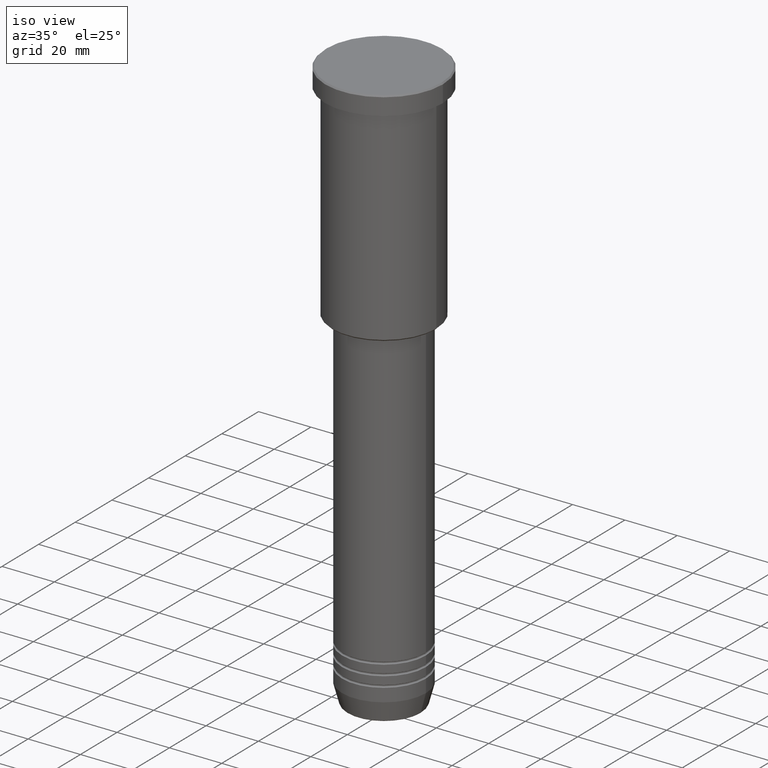
[diagram: clean part render]
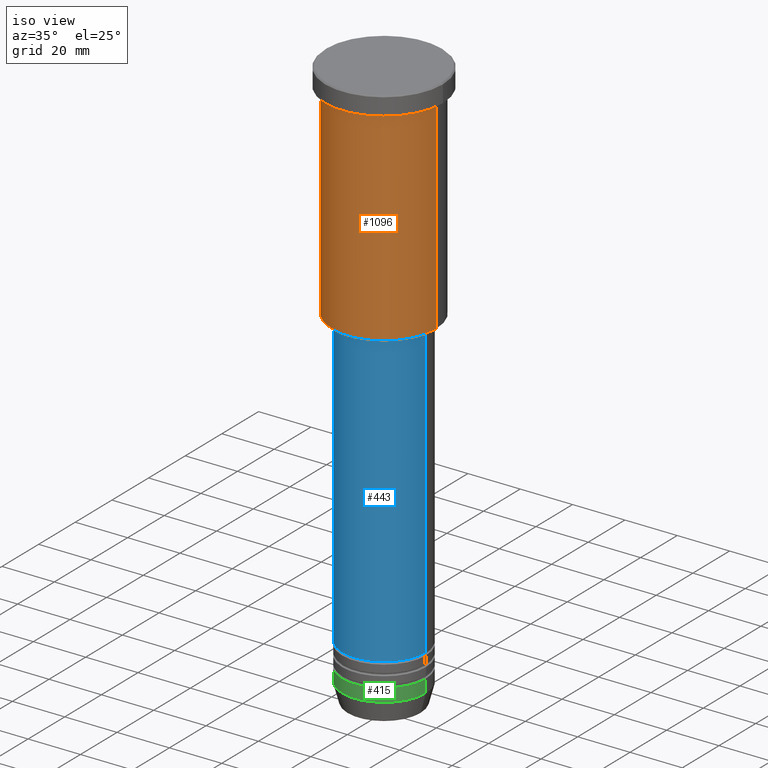
[diagram: same view with three faces highlighted in distinct colors, each labeled with its STEP entity id]
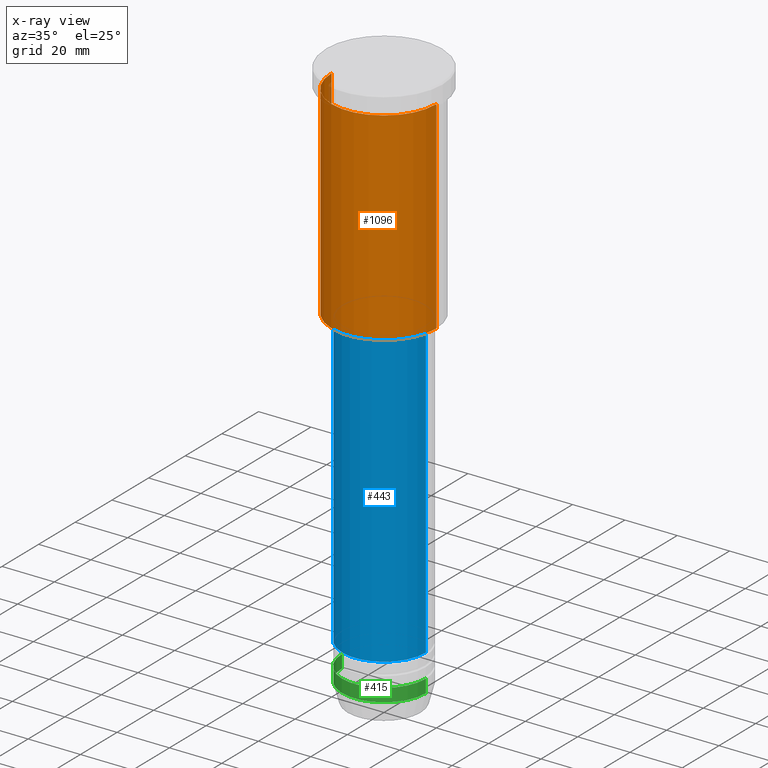
[diagram: x-ray of the same camera — body ghosted, the three highlighted faces saturated]
A machine part, iso view with three faces highlighted in distinct colors.
The next image is the same camera in x-ray (body ghosted, the three faces saturated) — at least one of them is partly hidden behind the body in this view.
Their STEP definitions:

[orange] entity #1096 — the highlighted cylindrical surface (partial cylindrical patch) has radius 20 mm, axis along (-0, -0, 1).
#25 = FACE_OUTER_BOUND ( 'NONE', #136, .T. ) ;
#26 = CARTESIAN_POINT ( 'NONE',  ( 20.00000000000000000, 0.000000000000000000, -7.999999999999994671 ) ) ;
#35 = DIRECTION ( 'NONE',  ( -0.000000000000000000, -0.000000000000000000, 1.000000000000000000 ) ) ;
#95 = CARTESIAN_POINT ( 'NONE',  ( -20.00000000000000000, 2.449293598294706513E-15, -7.999999999999994671 ) ) ;
#136 = EDGE_LOOP ( 'NONE', ( #387, #240, #1048, #1097 ) ) ;
#187 = VECTOR ( 'NONE', #393, 1000.000000000000000 ) ;
#225 = CIRCLE ( 'NONE', #726, 20.00000000000000000 ) ;
#228 = CYLINDRICAL_SURFACE ( 'NONE', #856, 20.00000000000000355 ) ;
#240 = ORIENTED_EDGE ( 'NONE', *, *, #769, .T. ) ;
#278 = DIRECTION ( 'NONE',  ( -0.000000000000000000, -0.000000000000000000, 1.000000000000000000 ) ) ;
#280 = VECTOR ( 'NONE', #278, 1000.000000000000000 ) ;
#309 = DIRECTION ( 'NONE',  ( 1.000000000000000000, 0.000000000000000000, 0.000000000000000000 ) ) ;
#321 = DIRECTION ( 'NONE',  ( -0.000000000000000000, -0.000000000000000000, 1.000000000000000000 ) ) ;
#387 = ORIENTED_EDGE ( 'NONE', *, *, #1128, .F. ) ;
#393 = DIRECTION ( 'NONE',  ( -0.000000000000000000, -0.000000000000000000, 1.000000000000000000 ) ) ;
#402 = DIRECTION ( 'NONE',  ( -1.000000000000000000, 0.000000000000000000, 0.000000000000000000 ) ) ;
#452 = CARTESIAN_POINT ( 'NONE',  ( 20.00000000000000355, 0.000000000000000000, 0.000000000000000000 ) ) ;
#478 = EDGE_CURVE ( 'NONE', #498, #624, #1088, .T. ) ;
#491 = DIRECTION ( 'NONE',  ( -0.000000000000000000, -0.000000000000000000, 1.000000000000000000 ) ) ;
#498 = VERTEX_POINT ( 'NONE', #920 ) ;
#504 = CIRCLE ( 'NONE', #838, 20.00000000000000355 ) ;
#572 = CARTESIAN_POINT ( 'NONE',  ( -20.00000000000000355, 2.449293598294706907E-15, -85.49999999999998579 ) ) ;
#576 = CARTESIAN_POINT ( 'NONE',  ( 0.000000000000000000, 0.000000000000000000, 0.000000000000000000 ) ) ;
#624 = VERTEX_POINT ( 'NONE', #26 ) ;
#659 = DIRECTION ( 'NONE',  ( 1.000000000000000000, 0.000000000000000000, 0.000000000000000000 ) ) ;
#666 = LINE ( 'NONE', #1108, #187 ) ;
#726 = AXIS2_PLACEMENT_3D ( 'NONE', #759, #321, #659 ) ;
#748 = EDGE_CURVE ( 'NONE', #929, #624, #225, .T. ) ;
#759 = CARTESIAN_POINT ( 'NONE',  ( 0.000000000000000000, 0.000000000000000000, -7.999999999999994671 ) ) ;
#765 = VERTEX_POINT ( 'NONE', #572 ) ;
#769 = EDGE_CURVE ( 'NONE', #765, #498, #504, .T. ) ;
#838 = AXIS2_PLACEMENT_3D ( 'NONE', #937, #35, #402 ) ;
#856 = AXIS2_PLACEMENT_3D ( 'NONE', #576, #491, #309 ) ;
#920 = CARTESIAN_POINT ( 'NONE',  ( 20.00000000000000355, 0.000000000000000000, -85.49999999999998579 ) ) ;
#929 = VERTEX_POINT ( 'NONE', #95 ) ;
#937 = CARTESIAN_POINT ( 'NONE',  ( 0.000000000000000000, 0.000000000000000000, -85.49999999999998579 ) ) ;
#1048 = ORIENTED_EDGE ( 'NONE', *, *, #478, .T. ) ;
#1088 = LINE ( 'NONE', #452, #280 ) ;
#1096 = ADVANCED_FACE ( 'NONE', ( #25 ), #228, .T. ) ;
#1097 = ORIENTED_EDGE ( 'NONE', *, *, #748, .F. ) ;
#1108 = CARTESIAN_POINT ( 'NONE',  ( -20.00000000000000355, 2.449293598294706907E-15, 0.000000000000000000 ) ) ;
#1128 = EDGE_CURVE ( 'NONE', #765, #929, #666, .T. ) ;

[blue] entity #443 — the highlighted cylindrical surface (partial cylindrical patch) has radius 16 mm, axis along (-0, -0, 1).
#1 = CARTESIAN_POINT ( 'NONE',  ( 16.00000000000000000, 0.000000000000000000, 0.000000000000000000 ) ) ;
#58 = EDGE_CURVE ( 'NONE', #1114, #335, #188, .T. ) ;
#79 = FACE_OUTER_BOUND ( 'NONE', #618, .T. ) ;
#128 = CIRCLE ( 'NONE', #606, 16.00000000000000000 ) ;
#188 = LINE ( 'NONE', #1, #1052 ) ;
#242 = VECTOR ( 'NONE', #1151, 1000.000000000000000 ) ;
#291 = CARTESIAN_POINT ( 'NONE',  ( -16.00000000000000000, 1.959434878635765131E-15, -198.4999999999999716 ) ) ;
#335 = VERTEX_POINT ( 'NONE', #922 ) ;
#427 = VERTEX_POINT ( 'NONE', #902 ) ;
#441 = CYLINDRICAL_SURFACE ( 'NONE', #679, 16.00000000000000000 ) ;
#443 = ADVANCED_FACE ( 'NONE', ( #79 ), #441, .T. ) ;
#445 = DIRECTION ( 'NONE',  ( -0.000000000000000000, -0.000000000000000000, 1.000000000000000000 ) ) ;
#453 = AXIS2_PLACEMENT_3D ( 'NONE', #641, #913, #1171 ) ;
#490 = ORIENTED_EDGE ( 'NONE', *, *, #995, .F. ) ;
#522 = LINE ( 'NONE', #706, #242 ) ;
#537 = DIRECTION ( 'NONE',  ( 1.000000000000000000, 0.000000000000000000, 0.000000000000000000 ) ) ;
#606 = AXIS2_PLACEMENT_3D ( 'NONE', #993, #445, #812 ) ;
#618 = EDGE_LOOP ( 'NONE', ( #811, #1090, #1180, #490 ) ) ;
#641 = CARTESIAN_POINT ( 'NONE',  ( 0.000000000000000000, 0.000000000000000000, -198.4999999999999716 ) ) ;
#679 = AXIS2_PLACEMENT_3D ( 'NONE', #878, #727, #537 ) ;
#706 = CARTESIAN_POINT ( 'NONE',  ( -16.00000000000000000, 1.959434878635765131E-15, 0.000000000000000000 ) ) ;
#727 = DIRECTION ( 'NONE',  ( -0.000000000000000000, -0.000000000000000000, 1.000000000000000000 ) ) ;
#796 = EDGE_CURVE ( 'NONE', #951, #427, #522, .T. ) ;
#800 = CIRCLE ( 'NONE', #453, 16.00000000000000000 ) ;
#811 = ORIENTED_EDGE ( 'NONE', *, *, #796, .F. ) ;
#812 = DIRECTION ( 'NONE',  ( 1.000000000000000000, 0.000000000000000000, 0.000000000000000000 ) ) ;
#815 = DIRECTION ( 'NONE',  ( -0.000000000000000000, -0.000000000000000000, 1.000000000000000000 ) ) ;
#878 = CARTESIAN_POINT ( 'NONE',  ( 0.000000000000000000, 0.000000000000000000, 0.000000000000000000 ) ) ;
#902 = CARTESIAN_POINT ( 'NONE',  ( -16.00000000000000000, 1.959434878635765131E-15, -87.00000000000002842 ) ) ;
#913 = DIRECTION ( 'NONE',  ( -0.000000000000000000, -0.000000000000000000, 1.000000000000000000 ) ) ;
#922 = CARTESIAN_POINT ( 'NONE',  ( 16.00000000000000000, 0.000000000000000000, -87.00000000000002842 ) ) ;
#941 = EDGE_CURVE ( 'NONE', #951, #1114, #800, .T. ) ;
#951 = VERTEX_POINT ( 'NONE', #291 ) ;
#993 = CARTESIAN_POINT ( 'NONE',  ( 0.000000000000000000, 0.000000000000000000, -87.00000000000002842 ) ) ;
#995 = EDGE_CURVE ( 'NONE', #427, #335, #128, .T. ) ;
#1052 = VECTOR ( 'NONE', #815, 1000.000000000000000 ) ;
#1090 = ORIENTED_EDGE ( 'NONE', *, *, #941, .T. ) ;
#1114 = VERTEX_POINT ( 'NONE', #1131 ) ;
#1131 = CARTESIAN_POINT ( 'NONE',  ( 16.00000000000000000, 0.000000000000000000, -198.4999999999999716 ) ) ;
#1151 = DIRECTION ( 'NONE',  ( -0.000000000000000000, -0.000000000000000000, 1.000000000000000000 ) ) ;
#1171 = DIRECTION ( 'NONE',  ( 1.000000000000000000, 0.000000000000000000, 0.000000000000000000 ) ) ;
#1180 = ORIENTED_EDGE ( 'NONE', *, *, #58, .T. ) ;

[green] entity #415 — the highlighted cylindrical surface (partial cylindrical patch) has radius 16 mm, axis along (-0, -0, 1).
#51 = CIRCLE ( 'NONE', #141, 16.00000000000000000 ) ;
#70 = CYLINDRICAL_SURFACE ( 'NONE', #601, 16.00000000000000000 ) ;
#102 = VERTEX_POINT ( 'NONE', #728 ) ;
#129 = DIRECTION ( 'NONE',  ( -0.000000000000000000, -0.000000000000000000, 1.000000000000000000 ) ) ;
#141 = AXIS2_PLACEMENT_3D ( 'NONE', #809, #1169, #354 ) ;
#173 = FACE_OUTER_BOUND ( 'NONE', #830, .T. ) ;
#250 = CARTESIAN_POINT ( 'NONE',  ( -16.00000000000000000, 1.959434878635765131E-15, -207.5000000000000000 ) ) ;
#322 = EDGE_CURVE ( 'NONE', #935, #357, #857, .T. ) ;
#354 = DIRECTION ( 'NONE',  ( 1.000000000000000000, 0.000000000000000000, 0.000000000000000000 ) ) ;
#357 = VERTEX_POINT ( 'NONE', #250 ) ;
#364 = VECTOR ( 'NONE', #877, 1000.000000000000000 ) ;
#375 = EDGE_CURVE ( 'NONE', #357, #603, #51, .T. ) ;
#381 = AXIS2_PLACEMENT_3D ( 'NONE', #677, #129, #1033 ) ;
#391 = CARTESIAN_POINT ( 'NONE',  ( -16.00000000000000000, 1.959434878635765131E-15, 0.000000000000000000 ) ) ;
#415 = ADVANCED_FACE ( 'NONE', ( #173 ), #70, .T. ) ;
#457 = CARTESIAN_POINT ( 'NONE',  ( -16.00000000000000000, 1.959434878635765131E-15, -212.5000000000000000 ) ) ;
#597 = ORIENTED_EDGE ( 'NONE', *, *, #322, .F. ) ;
#601 = AXIS2_PLACEMENT_3D ( 'NONE', #898, #696, #620 ) ;
#603 = VERTEX_POINT ( 'NONE', #994 ) ;
#620 = DIRECTION ( 'NONE',  ( 1.000000000000000000, 0.000000000000000000, 0.000000000000000000 ) ) ;
#630 = ORIENTED_EDGE ( 'NONE', *, *, #375, .F. ) ;
#655 = EDGE_CURVE ( 'NONE', #935, #102, #854, .T. ) ;
#677 = CARTESIAN_POINT ( 'NONE',  ( 0.000000000000000000, 0.000000000000000000, -212.5000000000000000 ) ) ;
#696 = DIRECTION ( 'NONE',  ( -0.000000000000000000, -0.000000000000000000, 1.000000000000000000 ) ) ;
#728 = CARTESIAN_POINT ( 'NONE',  ( 16.00000000000000000, 0.000000000000000000, -212.5000000000000000 ) ) ;
#746 = ORIENTED_EDGE ( 'NONE', *, *, #655, .T. ) ;
#776 = VECTOR ( 'NONE', #1034, 1000.000000000000000 ) ;
#809 = CARTESIAN_POINT ( 'NONE',  ( 0.000000000000000000, 0.000000000000000000, -207.5000000000000000 ) ) ;
#830 = EDGE_LOOP ( 'NONE', ( #597, #746, #1107, #630 ) ) ;
#854 = CIRCLE ( 'NONE', #381, 16.00000000000000000 ) ;
#857 = LINE ( 'NONE', #391, #776 ) ;
#877 = DIRECTION ( 'NONE',  ( -0.000000000000000000, -0.000000000000000000, 1.000000000000000000 ) ) ;
#897 = CARTESIAN_POINT ( 'NONE',  ( 16.00000000000000000, 0.000000000000000000, 0.000000000000000000 ) ) ;
#898 = CARTESIAN_POINT ( 'NONE',  ( 0.000000000000000000, 0.000000000000000000, 0.000000000000000000 ) ) ;
#904 = EDGE_CURVE ( 'NONE', #102, #603, #1071, .T. ) ;
#935 = VERTEX_POINT ( 'NONE', #457 ) ;
#994 = CARTESIAN_POINT ( 'NONE',  ( 16.00000000000000000, 0.000000000000000000, -207.5000000000000000 ) ) ;
#1033 = DIRECTION ( 'NONE',  ( 1.000000000000000000, 0.000000000000000000, 0.000000000000000000 ) ) ;
#1034 = DIRECTION ( 'NONE',  ( -0.000000000000000000, -0.000000000000000000, 1.000000000000000000 ) ) ;
#1071 = LINE ( 'NONE', #897, #364 ) ;
#1107 = ORIENTED_EDGE ( 'NONE', *, *, #904, .T. ) ;
#1169 = DIRECTION ( 'NONE',  ( -0.000000000000000000, -0.000000000000000000, 1.000000000000000000 ) ) ;